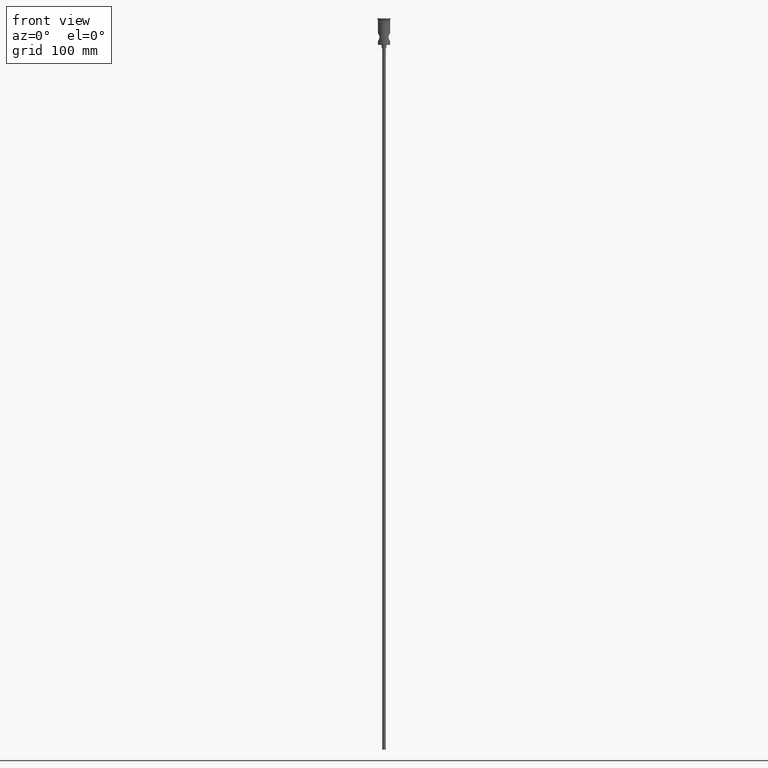
[diagram: clean part render]
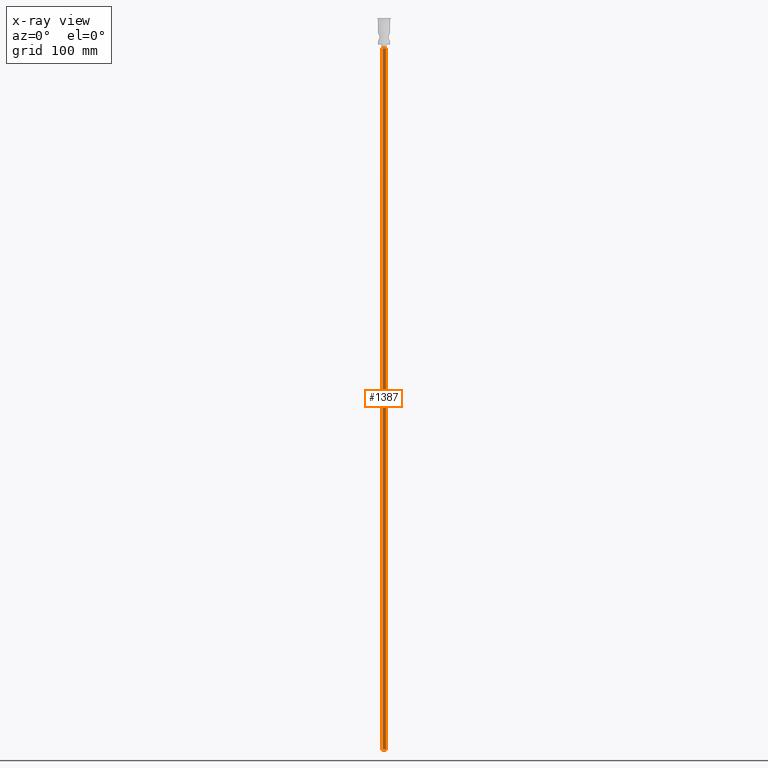
[diagram: x-ray — body ghosted, one internal face saturated and labeled with its STEP entity id]
A machine part, front view, then the same camera in x-ray: the body is ghosted and one INTERNAL B-rep face — a face not visible from any outside direction — is saturated and labeled: STEP entity #1387.
In plain terms, the highlighted cylindrical surface (edge-blend (fillet) strip) has radius 1.5 mm, axis along (-0, -0, 1).
Its self-contained STEP definition (entity closure, byte-faithful):
#46 = EDGE_CURVE ( 'NONE', #1347, #379, #612, .T. ) ;
#74 = ORIENTED_EDGE ( 'NONE', *, *, #46, .F. ) ;
#139 = CARTESIAN_POINT ( 'NONE',  ( -1.500000000000000222, 1.836970198721030181E-16, -25.50000000000000000 ) ) ;
#144 = EDGE_CURVE ( 'NONE', #379, #849, #854, .T. ) ;
#156 = AXIS2_PLACEMENT_3D ( 'NONE', #852, #644, #443 ) ;
#170 = ORIENTED_EDGE ( 'NONE', *, *, #144, .F. ) ;
#193 = CYLINDRICAL_SURFACE ( 'NONE', #820, 1.500000000000000222 ) ;
#274 = CIRCLE ( 'NONE', #156, 1.500000000000000222 ) ;
#301 = DIRECTION ( 'NONE',  ( -0.000000000000000000, -0.000000000000000000, 1.000000000000000000 ) ) ;
#303 = DIRECTION ( 'NONE',  ( -0.000000000000000000, -0.000000000000000000, 1.000000000000000000 ) ) ;
#327 = EDGE_CURVE ( 'NONE', #1347, #1204, #1410, .T. ) ;
#379 = VERTEX_POINT ( 'NONE', #1315 ) ;
#393 = DIRECTION ( 'NONE',  ( 0.000000000000000000, 0.000000000000000000, -1.000000000000000000 ) ) ;
#425 = EDGE_CURVE ( 'NONE', #1204, #849, #274, .T. ) ;
#443 = DIRECTION ( 'NONE',  ( -1.000000000000000000, 0.000000000000000000, 0.000000000000000000 ) ) ;
#495 = DIRECTION ( 'NONE',  ( -0.000000000000000000, -0.000000000000000000, 1.000000000000000000 ) ) ;
#612 = CIRCLE ( 'NONE', #931, 1.500000000000000222 ) ;
#644 = DIRECTION ( 'NONE',  ( 0.000000000000000000, 0.000000000000000000, -1.000000000000000000 ) ) ;
#739 = DIRECTION ( 'NONE',  ( 1.000000000000000000, 0.000000000000000000, 0.000000000000000000 ) ) ;
#816 = CARTESIAN_POINT ( 'NONE',  ( -1.500000000000000222, 1.836970198721030181E-16, -622.4999999999998863 ) ) ;
#820 = AXIS2_PLACEMENT_3D ( 'NONE', #1279, #301, #739 ) ;
#840 = VECTOR ( 'NONE', #303, 1000.000000000000000 ) ;
#849 = VERTEX_POINT ( 'NONE', #1132 ) ;
#852 = CARTESIAN_POINT ( 'NONE',  ( 0.000000000000000000, 0.000000000000000000, -25.50000000000000000 ) ) ;
#854 = LINE ( 'NONE', #1299, #840 ) ;
#912 = VECTOR ( 'NONE', #495, 1000.000000000000000 ) ;
#931 = AXIS2_PLACEMENT_3D ( 'NONE', #1378, #393, #1268 ) ;
#964 = FACE_OUTER_BOUND ( 'NONE', #1176, .T. ) ;
#1132 = CARTESIAN_POINT ( 'NONE',  ( 1.500000000000000222, 0.000000000000000000, -25.50000000000000000 ) ) ;
#1154 = ORIENTED_EDGE ( 'NONE', *, *, #327, .T. ) ;
#1176 = EDGE_LOOP ( 'NONE', ( #74, #1154, #1228, #170 ) ) ;
#1189 = CARTESIAN_POINT ( 'NONE',  ( -1.500000000000000222, 1.836970198721030181E-16, -622.4999999999998863 ) ) ;
#1204 = VERTEX_POINT ( 'NONE', #139 ) ;
#1228 = ORIENTED_EDGE ( 'NONE', *, *, #425, .T. ) ;
#1268 = DIRECTION ( 'NONE',  ( -1.000000000000000000, 0.000000000000000000, 0.000000000000000000 ) ) ;
#1279 = CARTESIAN_POINT ( 'NONE',  ( 0.000000000000000000, 0.000000000000000000, -622.4999999999998863 ) ) ;
#1299 = CARTESIAN_POINT ( 'NONE',  ( 1.500000000000000222, 0.000000000000000000, -622.4999999999998863 ) ) ;
#1315 = CARTESIAN_POINT ( 'NONE',  ( 1.500000000000000222, 0.000000000000000000, -622.4999999999998863 ) ) ;
#1347 = VERTEX_POINT ( 'NONE', #1189 ) ;
#1378 = CARTESIAN_POINT ( 'NONE',  ( 0.000000000000000000, 0.000000000000000000, -622.4999999999998863 ) ) ;
#1387 = ADVANCED_FACE ( 'NONE', ( #964 ), #193, .T. ) ;
#1410 = LINE ( 'NONE', #816, #912 ) ;